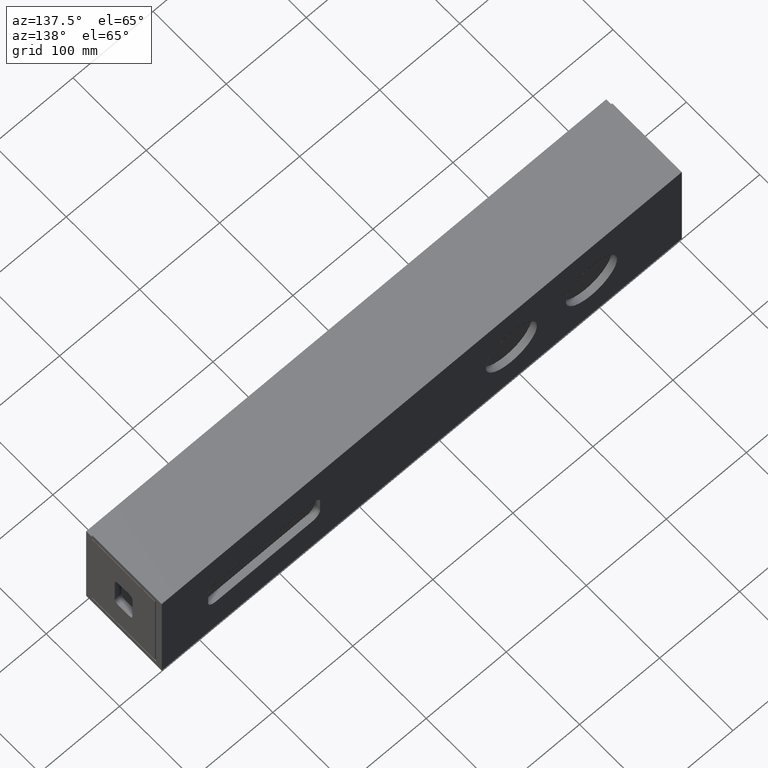
[diagram: clean part render]
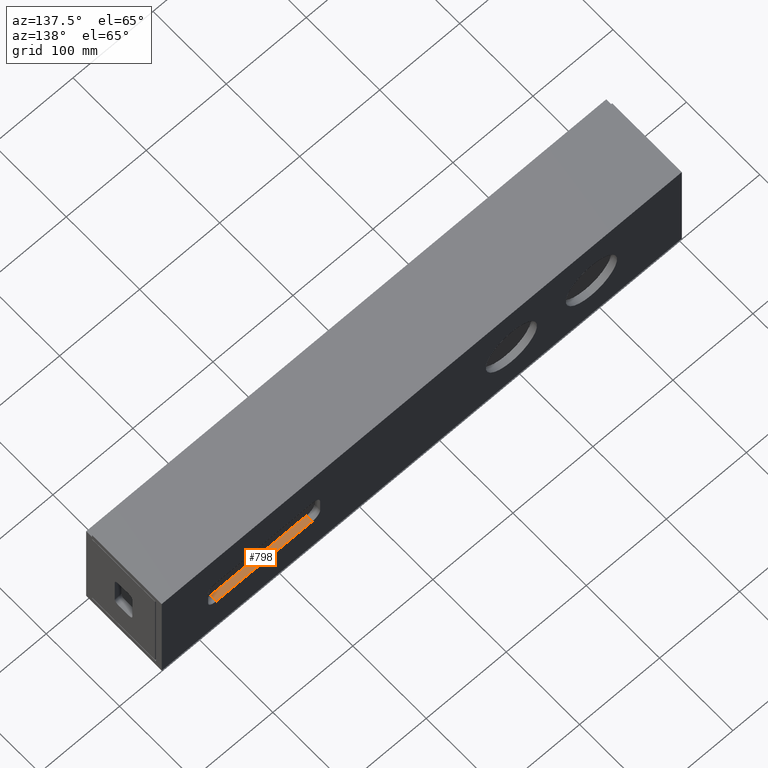
[diagram: same view with one face highlighted and labeled with its STEP entity id]
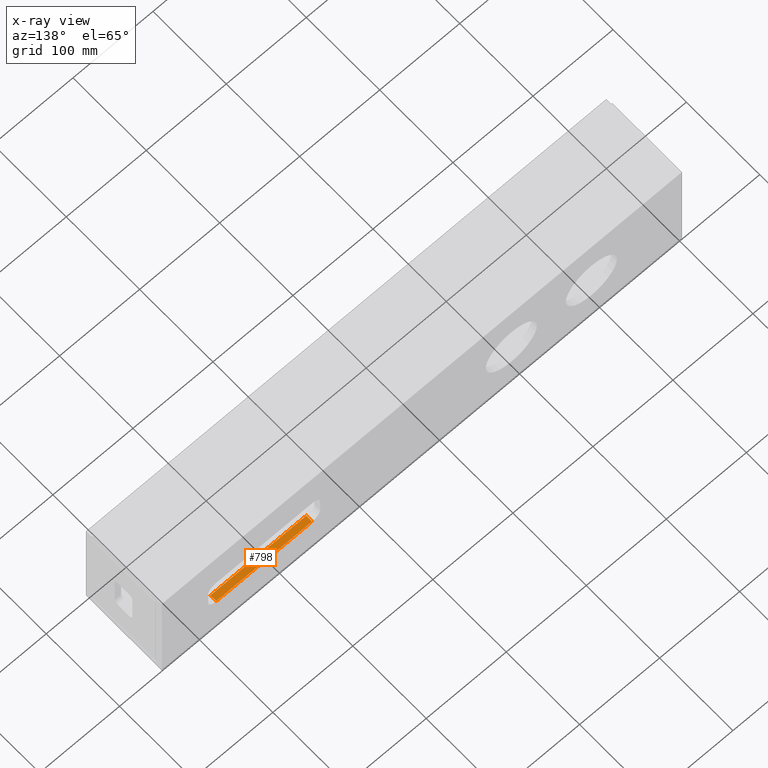
[diagram: x-ray of the same camera — body ghosted, the highlighted face saturated]
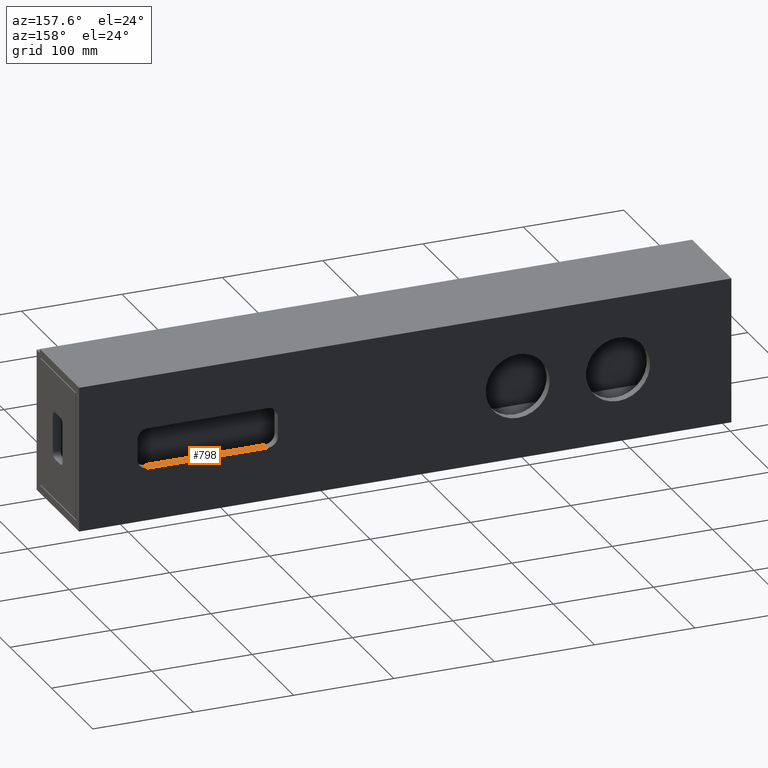
[diagram: same view with one face highlighted and labeled with its STEP entity id]
A machine part, auxiliary view. The second image highlights one B-rep face of the part: STEP entity #798.
The next image is the same camera in x-ray: the body ghosted, the highlighted face saturated — about 0% of this face is hidden behind the body in this view.
A second angle (auxiliary view) of the same face is appended — the face is thin or edge-on in the first view.
In plain terms, the highlighted planar face has unit normal (0, 0, -1).
Its self-contained STEP definition (entity closure, byte-faithful):
#101 = DIRECTION ( 'NONE',  ( -0.0000000000000000000, 1.000000000000000000, 9.570888143320320572E-17 ) ) ;
#102 = CARTESIAN_POINT ( 'NONE',  ( 582.0000000000000000, -0.001000000000014877877, 52.49999999999997868 ) ) ;
#103 = LINE ( 'NONE', #102, #460 ) ;
#250 = EDGE_CURVE ( 'NONE', #1195, #1152, #468, .T. ) ;
#265 = EDGE_CURVE ( 'NONE', #1547, #1324, #433, .T. ) ;
#284 = ORIENTED_EDGE ( 'NONE', *, *, #250, .F. ) ;
#385 = EDGE_CURVE ( 'NONE', #1195, #1547, #103, .T. ) ;
#431 = DIRECTION ( 'NONE',  ( -1.000000000000000000, -0.0000000000000000000, -0.0000000000000000000 ) ) ;
#432 = CARTESIAN_POINT ( 'NONE',  ( 461.9999999999999432, 103.0000000000000000, 52.49999999999998579 ) ) ;
#433 = LINE ( 'NONE', #432, #985 ) ;
#446 = DIRECTION ( 'NONE',  ( -0.0000000000000000000, 1.000000000000000000, 9.570888143320320572E-17 ) ) ;
#460 = VECTOR ( 'NONE', #101, 1000.000000000000000 ) ;
#466 = DIRECTION ( 'NONE',  ( -1.000000000000000000, 0.0000000000000000000, 0.0000000000000000000 ) ) ;
#467 = CARTESIAN_POINT ( 'NONE',  ( 461.9999999999999432, 94.99999999999998579, 52.49999999999998579 ) ) ;
#468 = LINE ( 'NONE', #467, #717 ) ;
#687 = EDGE_CURVE ( 'NONE', #1152, #1324, #1251, .T. ) ;
#704 = CARTESIAN_POINT ( 'NONE',  ( 582.0000000000000000, 103.0000000000000000, 52.49999999999998579 ) ) ;
#717 = VECTOR ( 'NONE', #466, 1000.000000000000000 ) ;
#798 = ADVANCED_FACE ( 'NONE', ( #1101 ), #1099, .F. ) ;
#833 = CARTESIAN_POINT ( 'NONE',  ( 461.9999999999999432, 103.0000000000000000, 52.49999999999998579 ) ) ;
#883 = AXIS2_PLACEMENT_3D ( 'NONE', #1098, #1096, #1094 ) ;
#885 = CARTESIAN_POINT ( 'NONE',  ( 582.0000000000000000, 94.99999999999998579, 52.49999999999998579 ) ) ;
#892 = CARTESIAN_POINT ( 'NONE',  ( 461.9999999999999432, 94.99999999999998579, 52.49999999999998579 ) ) ;
#940 = ORIENTED_EDGE ( 'NONE', *, *, #265, .T. ) ;
#985 = VECTOR ( 'NONE', #431, 1000.000000000000000 ) ;
#1000 = ORIENTED_EDGE ( 'NONE', *, *, #687, .F. ) ;
#1080 = VECTOR ( 'NONE', #446, 1000.000000000000000 ) ;
#1094 = DIRECTION ( 'NONE',  ( 0.0000000000000000000, 1.000000000000000000, 9.570888143320320572E-17 ) ) ;
#1096 = DIRECTION ( 'NONE',  ( 0.0000000000000000000, 9.570888143320320572E-17, -1.000000000000000000 ) ) ;
#1098 = CARTESIAN_POINT ( 'NONE',  ( 461.9999999999999432, -0.001000000000014877877, 52.49999999999997868 ) ) ;
#1099 = PLANE ( 'NONE',  #883 ) ;
#1101 = FACE_OUTER_BOUND ( 'NONE', #1473, .T. ) ;
#1119 = ORIENTED_EDGE ( 'NONE', *, *, #385, .T. ) ;
#1152 = VERTEX_POINT ( 'NONE', #892 ) ;
#1195 = VERTEX_POINT ( 'NONE', #885 ) ;
#1249 = CARTESIAN_POINT ( 'NONE',  ( 461.9999999999999432, -0.001000000000014877877, 52.49999999999997868 ) ) ;
#1251 = LINE ( 'NONE', #1249, #1080 ) ;
#1324 = VERTEX_POINT ( 'NONE', #833 ) ;
#1473 = EDGE_LOOP ( 'NONE', ( #1119, #940, #1000, #284 ) ) ;
#1547 = VERTEX_POINT ( 'NONE', #704 ) ;